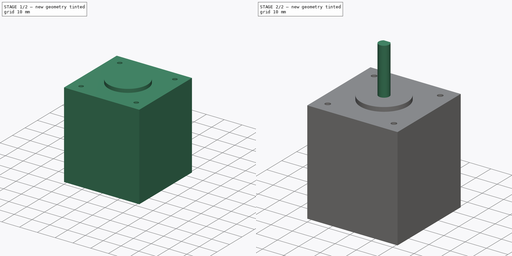
[diagram: build sequence overview — one tinted view per stage of 2, left to right]
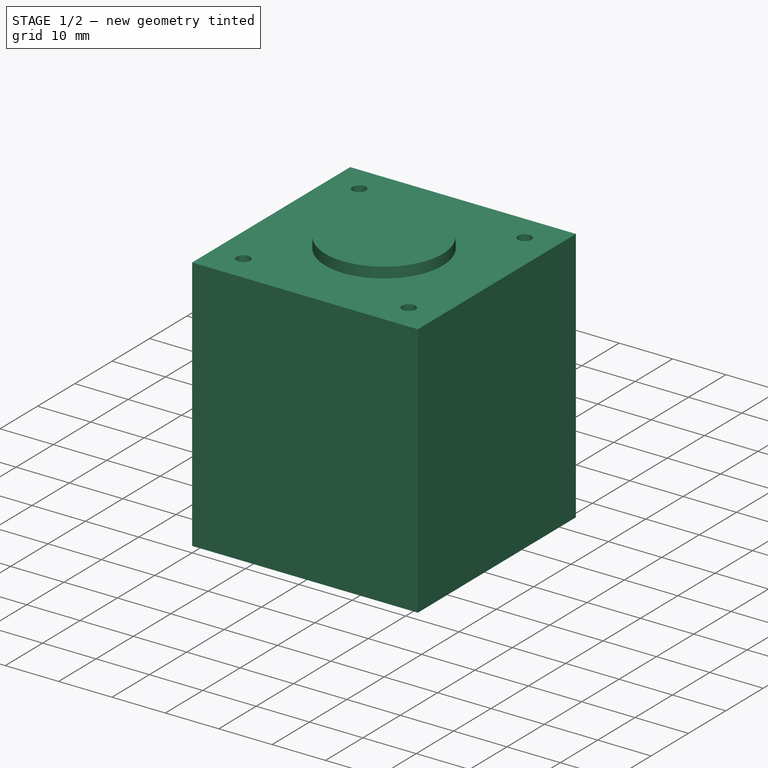
[diagram: stage 1 of 2 — iso view after this stage's code; geometry added in this stage tinted green]
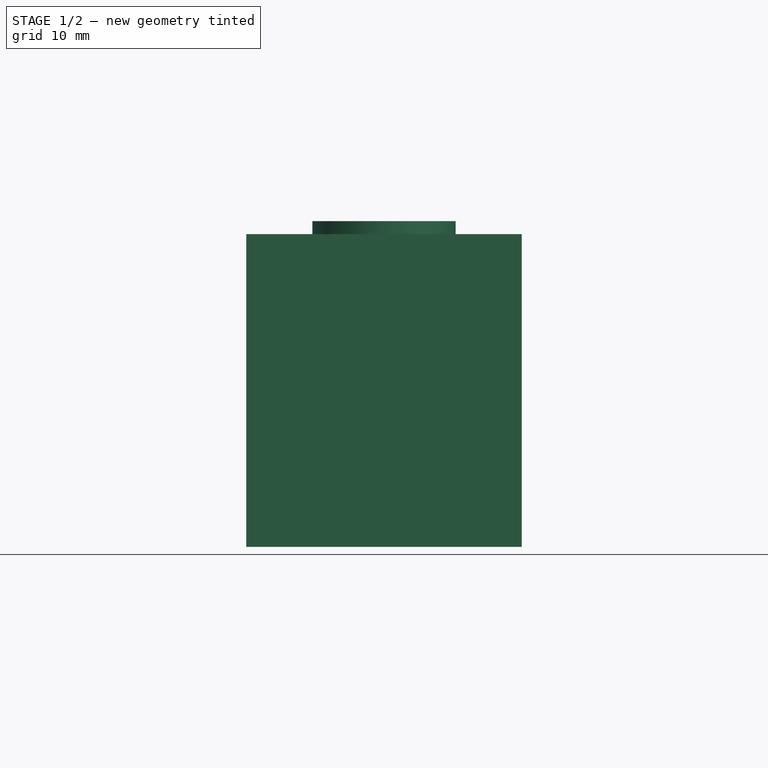
[diagram: stage 1 of 2 — front view after this stage's code; geometry added in this stage tinted green]
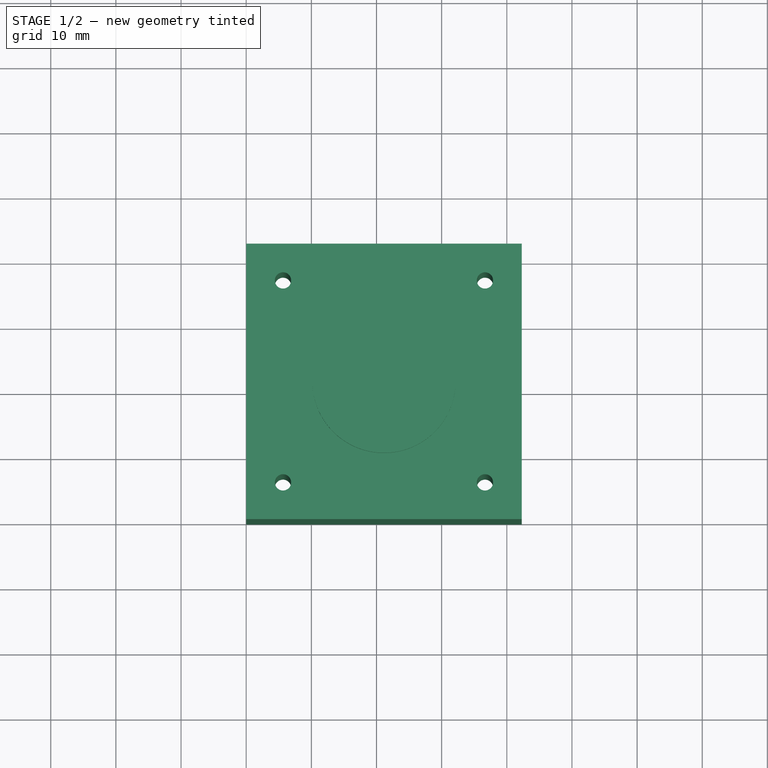
[diagram: stage 1 of 2 — top view after this stage's code; geometry added in this stage tinted green]
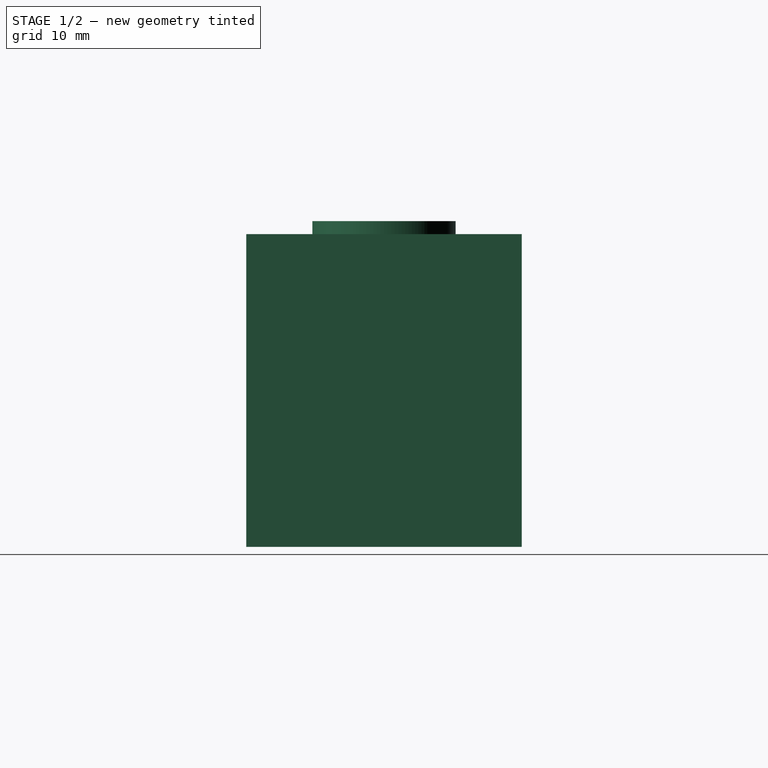
[diagram: stage 1 of 2 — right view after this stage's code; geometry added in this stage tinted green]
FCSTD DOCUMENT  (FreeCAD 0.16R6707 (Git))
Label: moteurs pap
License: All rights reserved
LicenseURL: http://en.wikipedia.org/wiki/All_rights_reserved
objects: Sketcher::SketchObject×4, PartDesign::Pad×3, PartDesign::Pocket×1
note: 12 computed .brp shape members not serialized (recipe doc carries the construction recipe); baked Part::Feature solids carry a one-line shape summary decoded from their .brp

FEATURE [Sketcher::SketchObject] Sketch
  sketch-geometry (12):
    g0: LineSegment StartX=0 StartY=0 StartZ=0 EndX=42.3 EndY=0 EndZ=0
    g1: LineSegment StartX=42.3 StartY=0 StartZ=0 EndX=42.3 EndY=42.3 EndZ=0
    g2: LineSegment StartX=42.3 StartY=42.3 StartZ=0 EndX=0 EndY=42.3 EndZ=0
    g3: LineSegment StartX=0 StartY=42.3 StartZ=0 EndX=0 EndY=0 EndZ=0
    g4: GeomPoint [constr] X=5.65 Y=5.65 Z=0
    g5: GeomPoint [constr] X=36.65 Y=5.65 Z=0
    g6: GeomPoint [constr] X=5.65 Y=36.65 Z=0
    g7: GeomPoint [constr] X=36.65 Y=36.65 Z=0
    g8: Circle CenterX=5.65 CenterY=5.65 CenterZ=0 NormalX=0 NormalY=0 NormalZ=1 Radius=1.25
    g9: Circle CenterX=5.65 CenterY=36.65 CenterZ=0 NormalX=0 NormalY=0 NormalZ=1 Radius=1.25
    g10: Circle CenterX=36.65 CenterY=36.65 CenterZ=0 NormalX=0 NormalY=0 NormalZ=1 Radius=1.25
    g11: Circle CenterX=36.65 CenterY=5.65 CenterZ=0 NormalX=0 NormalY=0 NormalZ=1 Radius=1.25
  constraints (27):
    c: Coincident(g0,g1)
    c: Coincident(g1,g2)
    c: Coincident(g2,g3)
    c: Coincident(g3,g0)
    c: Horizontal(g0)
    c: Horizontal(g2)
    c: Vertical(g1)
    c: Vertical(g3)
    c: Coincident(g0,g-1)
    c: Distance(g3) = 42.3
    c: Distance(g2) = 42.3
    c: DistanceY(g4) = 5.65
    c: DistanceX(g4) = 5.65
    c: DistanceX(g4,g5) = 31
    c: DistanceY(g4,g5) = 0
    c: DistanceY(g4,g6) = 31
    c: DistanceX(g4,g6) = 0
    c: DistanceX(g7,g5) = 0
    c: DistanceY(g5,g7) = 31
    c: Coincident(g8,g4)
    c: Coincident(g9,g6)
    c: Coincident(g10,g7)
    c: Coincident(g11,g5)
    c: Radius(g9) = 1.25
    c: Radius(g10) = 1.25
    c: Radius(g8) = 1.25
    c: Radius(g11) = 1.25
FEATURE [PartDesign::Pad] Pad
  Length = 48
  Length2 = 100
  Sketch = -> Sketch
  Type = 0
FEATURE [Sketcher::SketchObject] Sketch001
  Placement = pos=(0,0,48) rot=(0,0,1;0rad)
  Support = -> Pad [Face10]
  sketch-geometry (2):
    g0: GeomPoint [constr] X=21.15 Y=21.15 Z=0
    g1: Circle CenterX=21.15 CenterY=21.15 CenterZ=0 NormalX=0 NormalY=0 NormalZ=1 Radius=11
  constraints (4):
    c: DistanceY(g0) = 21.15
    c: DistanceX(g0) = 21.15
    c: Coincident(g1,g0)
    c: Radius(g1) = 11
FEATURE [PartDesign::Pad] Pad001
  Length = 2
  Length2 = 100
  Sketch = -> Sketch001
  Type = 0
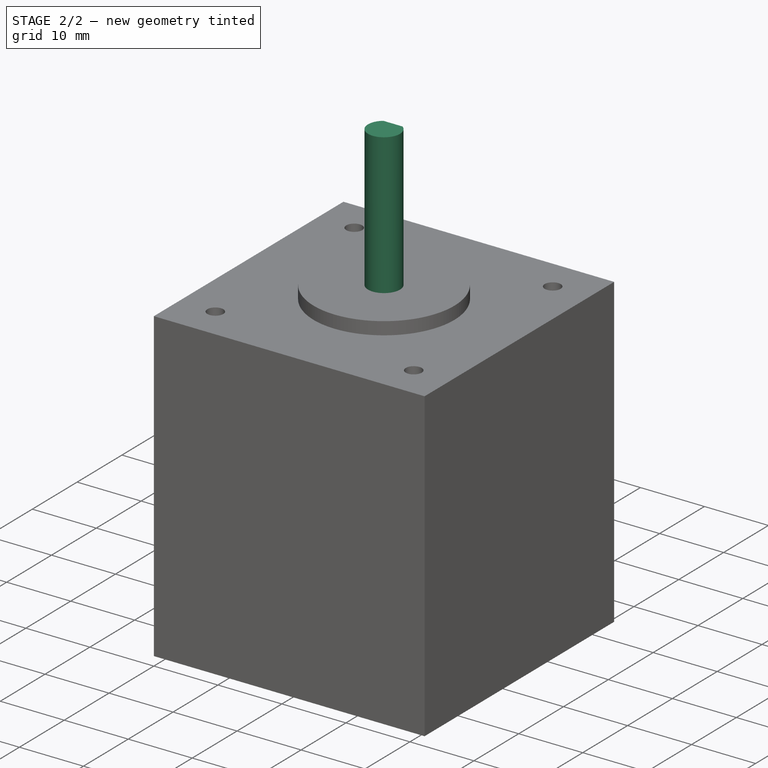
[diagram: stage 2 of 2 — iso view after this stage's code; geometry added in this stage tinted green]
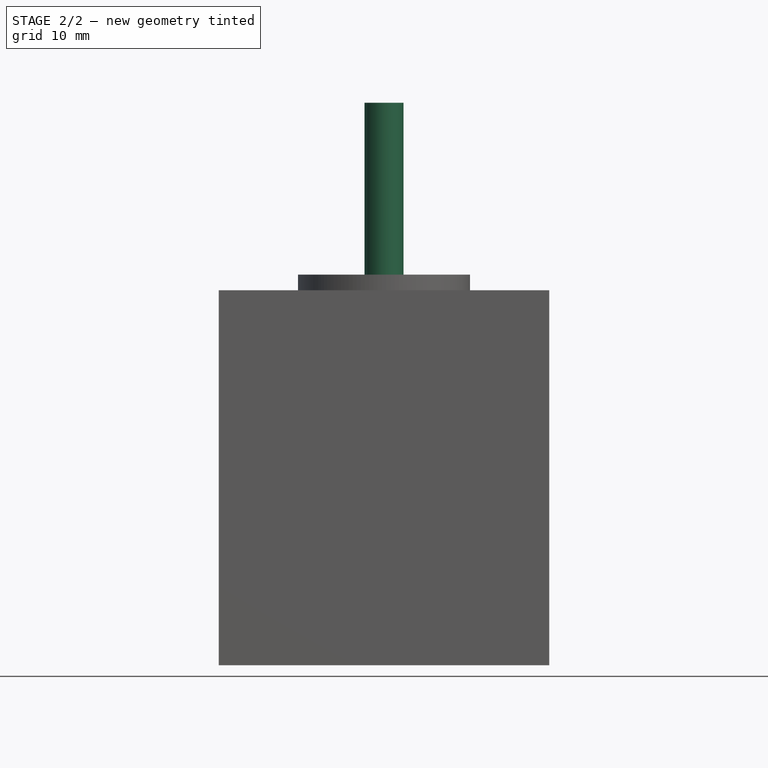
[diagram: stage 2 of 2 — front view after this stage's code; geometry added in this stage tinted green]
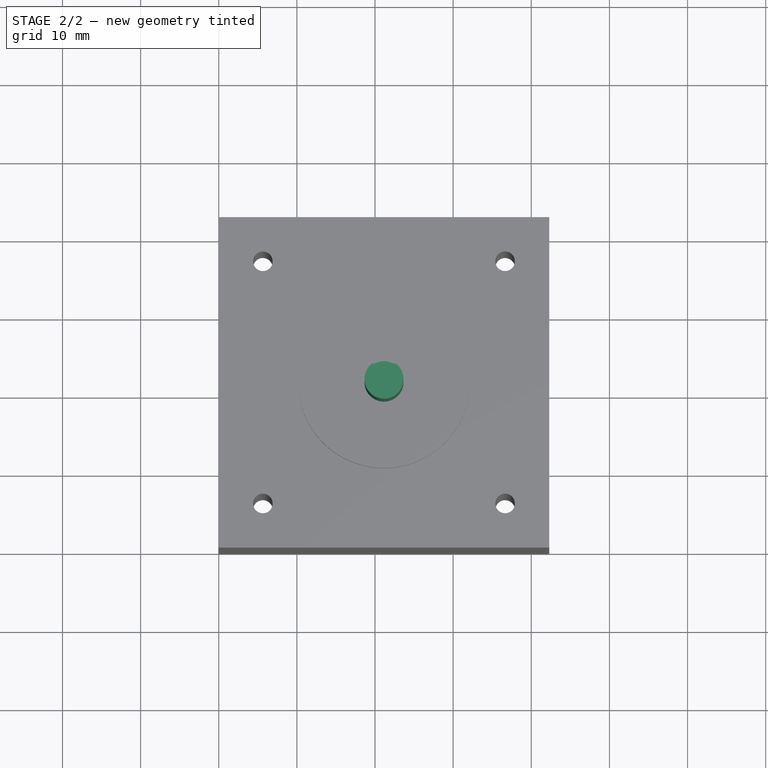
[diagram: stage 2 of 2 — top view after this stage's code; geometry added in this stage tinted green]
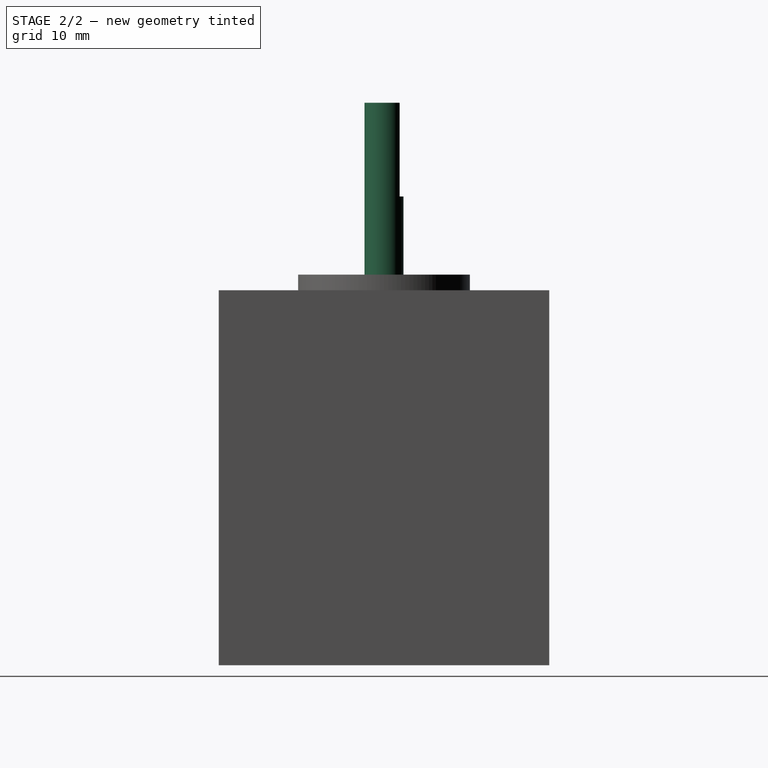
[diagram: stage 2 of 2 — right view after this stage's code; geometry added in this stage tinted green]
FEATURE [Sketcher::SketchObject] Sketch002
  Placement = pos=(0,0,50) rot=(0,0,1;0rad)
  Support = -> Pad001 [Face12]
  sketch-geometry (2):
    g0: GeomPoint [constr] X=21.15 Y=21.15 Z=0
    g1: Circle CenterX=21.15 CenterY=21.15 CenterZ=0 NormalX=0 NormalY=0 NormalZ=1 Radius=2.5
  constraints (4):
    c: DistanceY(g0) = 21.15
    c: DistanceX(g0) = 21.15
    c: Coincident(g1,g0)
    c: Radius(g1) = 2.5
FEATURE [PartDesign::Pad] Pad002
  Length = 22
  Length2 = 100
  Sketch = -> Sketch002
  Type = 0
FEATURE [Sketcher::SketchObject] Sketch003
  Placement = pos=(0,0,72) rot=(0,0,1;0rad)
  Support = -> Pad002 [Face14]
  sketch-geometry (8):
    g0: GeomPoint [constr] X=21.15 Y=21.15 Z=0
    g1: GeomPoint [constr] X=21.15 Y=18.65 Z=0
    g2: GeomPoint [constr] X=21.15 Y=23.15 Z=0
    g3: LineSegment StartX=21.15 StartY=23.15 StartZ=0 EndX=23.3169 EndY=23.15 EndZ=0
    g4: LineSegment StartX=21.15 StartY=23.15 StartZ=0 EndX=17.2745 EndY=23.15 EndZ=0
    g5: LineSegment StartX=17.2745 StartY=23.15 StartZ=0 EndX=17.2745 EndY=24.8337 EndZ=0
    g6: LineSegment StartX=17.2745 StartY=24.8337 StartZ=0 EndX=23.3169 EndY=24.8337 EndZ=0
    g7: LineSegment StartX=23.3169 StartY=24.8337 StartZ=0 EndX=23.3169 EndY=23.15 EndZ=0
  constraints (17):
    c: DistanceX(g0) = 21.15
    c: DistanceY(g0) = 21.15
    c: DistanceX(g1,g0) = 0
    c: DistanceY(g1,g0) = 2.5
    c: DistanceX(g0,g2) = 0
    c: DistanceY(g1,g2) = 4.5
    c: Coincident(g3,g2)
    c: Horizontal(g3)
    c: Coincident(g4,g2)
    c: Horizontal(g4)
    c: Coincident(g5,g4)
    c: Vertical(g5)
    c: Coincident(g6,g5)
    c: Horizontal(g6)
    c: Coincident(g7,g6)
    c: Coincident(g7,g3)
    c: Vertical(g7)
FEATURE [PartDesign::Pocket] Pocket
  Length = 12
  Sketch = -> Sketch003
  Type = 0
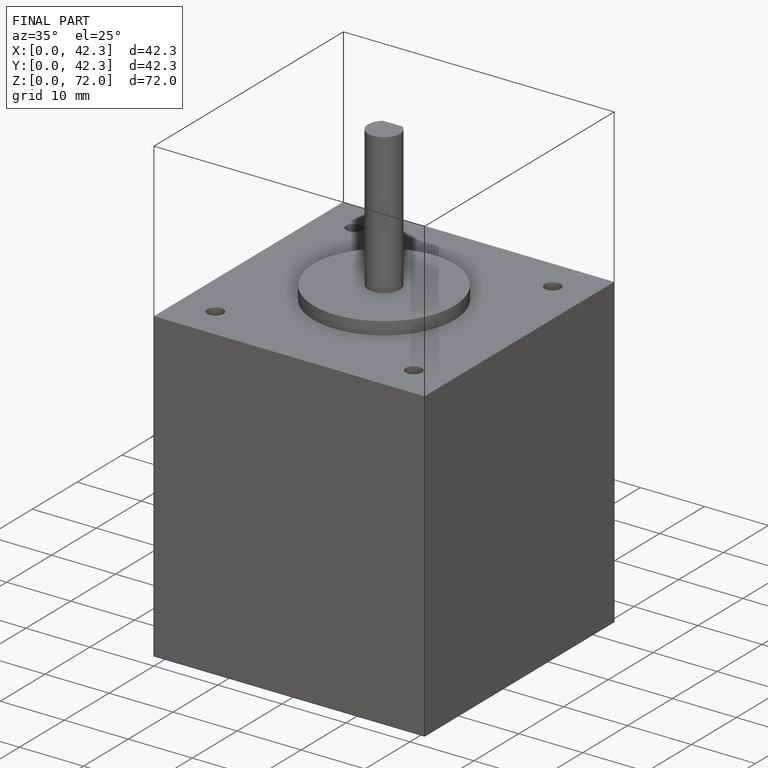
[diagram: finished part — iso view with bounding-box wireframe]
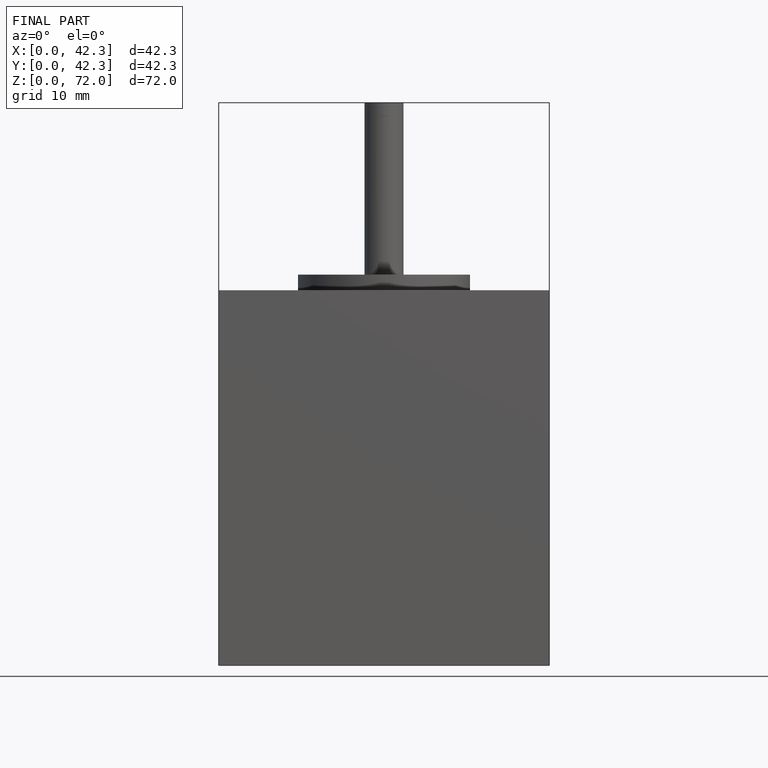
[diagram: finished part — front view with bounding-box wireframe]
